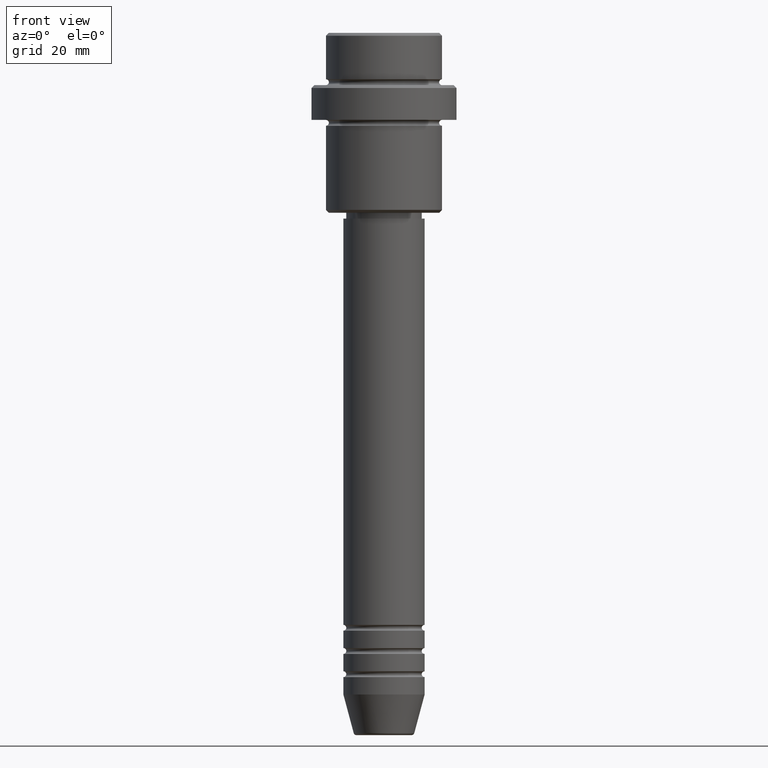
[diagram: clean part render]
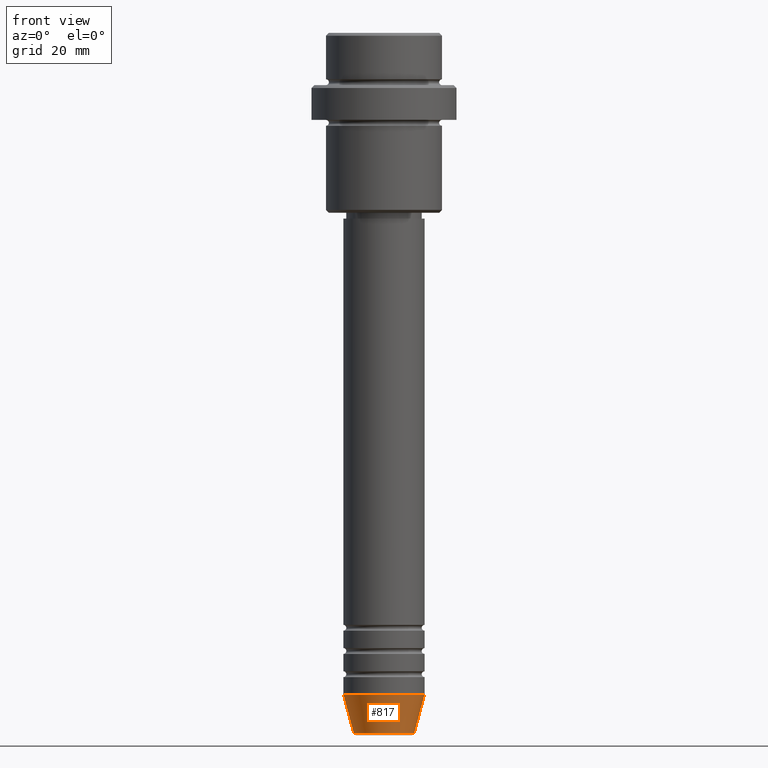
[diagram: same view with one face highlighted and labeled with its STEP entity id]
A machine part, front view. The second image highlights one B-rep face of the part: STEP entity #817.
In plain terms, the highlighted conical surface has half-angle 15 deg.
Its self-contained STEP definition (entity closure, byte-faithful):
#1 = DIRECTION ( 'NONE',  ( 1.000000000000000000, 0.000000000000000000, 0.000000000000000000 ) ) ;
#29 = VERTEX_POINT ( 'NONE', #990 ) ;
#42 = CARTESIAN_POINT ( 'NONE',  ( 7.000000000000000000, 0.000000000000000000, -113.9999999999999858 ) ) ;
#58 = VECTOR ( 'NONE', #457, 1000.000000000000000 ) ;
#66 = EDGE_CURVE ( 'NONE', #29, #759, #1015, .T. ) ;
#99 = CIRCLE ( 'NONE', #377, 5.223655072137187716 ) ;
#102 = CARTESIAN_POINT ( 'NONE',  ( 7.000000000000000000, 0.000000000000000000, -113.9999999999999858 ) ) ;
#191 = AXIS2_PLACEMENT_3D ( 'NONE', #1191, #1172, #319 ) ;
#319 = DIRECTION ( 'NONE',  ( 1.000000000000000000, 0.000000000000000000, 0.000000000000000000 ) ) ;
#321 = CARTESIAN_POINT ( 'NONE',  ( 0.000000000000000000, 0.000000000000000000, -113.9999999999999858 ) ) ;
#344 = DIRECTION ( 'NONE',  ( -0.000000000000000000, -0.000000000000000000, 1.000000000000000000 ) ) ;
#353 = CARTESIAN_POINT ( 'NONE',  ( -7.000000000000000000, 8.572527594031473190E-16, -113.9999999999999858 ) ) ;
#377 = AXIS2_PLACEMENT_3D ( 'NONE', #638, #1079, #1 ) ;
#392 = CARTESIAN_POINT ( 'NONE',  ( -5.223655072137187716, 7.484830028987059188E-16, -120.6294095225512564 ) ) ;
#408 = EDGE_CURVE ( 'NONE', #631, #29, #99, .T. ) ;
#409 = ORIENTED_EDGE ( 'NONE', *, *, #1093, .F. ) ;
#442 = CIRCLE ( 'NONE', #734, 7.000000000000000000 ) ;
#450 = LINE ( 'NONE', #353, #58 ) ;
#457 = DIRECTION ( 'NONE',  ( -0.2588190451025214056, 3.169619151431772953E-17, 0.9659258262890680902 ) ) ;
#464 = CONICAL_SURFACE ( 'NONE', #191, 7.000000000000000000, 0.2617993877991501295 ) ;
#478 = DIRECTION ( 'NONE',  ( 0.2588190451025214056, 0.000000000000000000, 0.9659258262890680902 ) ) ;
#592 = ORIENTED_EDGE ( 'NONE', *, *, #408, .T. ) ;
#631 = VERTEX_POINT ( 'NONE', #392 ) ;
#638 = CARTESIAN_POINT ( 'NONE',  ( 0.000000000000000000, 0.000000000000000000, -120.6294095225512564 ) ) ;
#683 = VECTOR ( 'NONE', #478, 1000.000000000000000 ) ;
#728 = FACE_OUTER_BOUND ( 'NONE', #1052, .T. ) ;
#734 = AXIS2_PLACEMENT_3D ( 'NONE', #321, #344, #1001 ) ;
#759 = VERTEX_POINT ( 'NONE', #102 ) ;
#817 = ADVANCED_FACE ( 'NONE', ( #728 ), #464, .T. ) ;
#834 = ORIENTED_EDGE ( 'NONE', *, *, #945, .F. ) ;
#875 = ORIENTED_EDGE ( 'NONE', *, *, #66, .T. ) ;
#895 = CARTESIAN_POINT ( 'NONE',  ( -7.000000000000000000, 8.572527594031473190E-16, -113.9999999999999858 ) ) ;
#944 = VERTEX_POINT ( 'NONE', #895 ) ;
#945 = EDGE_CURVE ( 'NONE', #631, #944, #450, .T. ) ;
#990 = CARTESIAN_POINT ( 'NONE',  ( 5.223655072137187716, 0.000000000000000000, -120.6294095225512564 ) ) ;
#1001 = DIRECTION ( 'NONE',  ( 1.000000000000000000, 0.000000000000000000, 0.000000000000000000 ) ) ;
#1015 = LINE ( 'NONE', #42, #683 ) ;
#1052 = EDGE_LOOP ( 'NONE', ( #834, #592, #875, #409 ) ) ;
#1079 = DIRECTION ( 'NONE',  ( -0.000000000000000000, -0.000000000000000000, 1.000000000000000000 ) ) ;
#1093 = EDGE_CURVE ( 'NONE', #944, #759, #442, .T. ) ;
#1172 = DIRECTION ( 'NONE',  ( -0.000000000000000000, -0.000000000000000000, 1.000000000000000000 ) ) ;
#1191 = CARTESIAN_POINT ( 'NONE',  ( 0.000000000000000000, 0.000000000000000000, -113.9999999999999858 ) ) ;